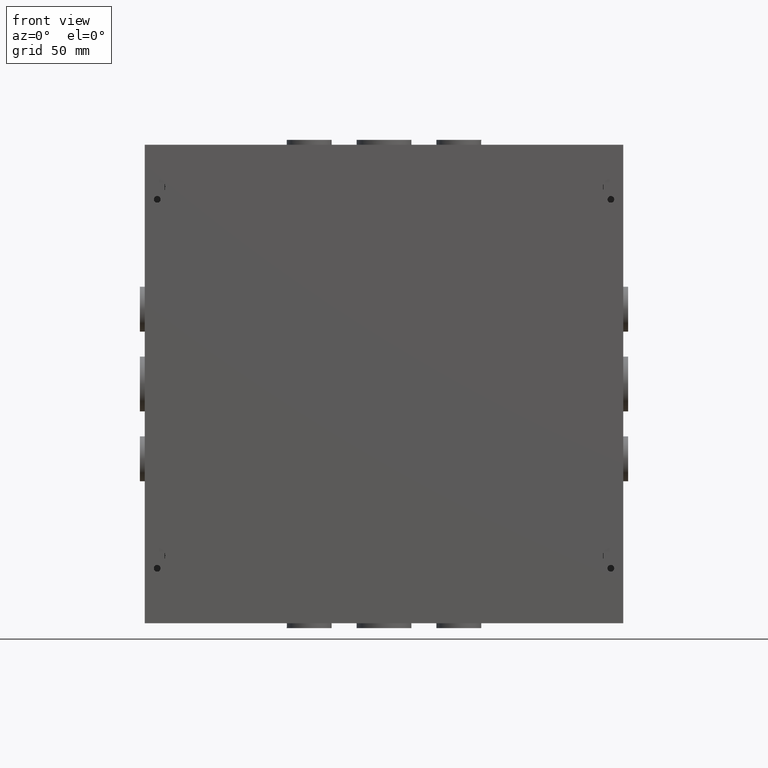
[diagram: clean part render]
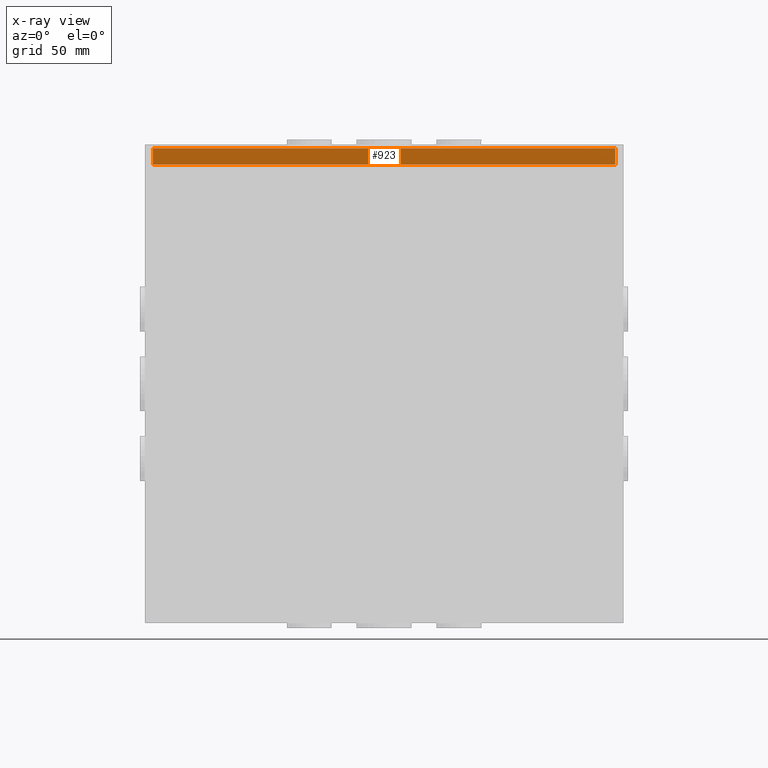
[diagram: x-ray — body ghosted, one internal face saturated and labeled with its STEP entity id]
A machine part, front view, then the same camera in x-ray: the body is ghosted and one INTERNAL B-rep face — a face not visible from any outside direction — is saturated and labeled: STEP entity #923.
In plain terms, the highlighted planar face has unit normal (-0, 1, -0).
Its self-contained STEP definition (entity closure, byte-faithful):
#923 = ADVANCED_FACE( '', ( #1976 ), #1977, .F. );
#1976 = FACE_OUTER_BOUND( '', #3091, .T. );
#1977 = PLANE( '', #3092 );
#3091 = EDGE_LOOP( '', ( #5417, #5418, #5419, #5420 ) );
#3092 = AXIS2_PLACEMENT_3D( '', #5421, #5422, #5423 );
#5417 = ORIENTED_EDGE( '', *, *, #6747, .T. );
#5418 = ORIENTED_EDGE( '', *, *, #6790, .T. );
#5419 = ORIENTED_EDGE( '', *, *, #6791, .F. );
#5420 = ORIENTED_EDGE( '', *, *, #6101, .T. );
#5421 = CARTESIAN_POINT( '', ( -1040.50147500000, 0.000000000000000, -73.9140000000000 ) );
#5422 = DIRECTION( '', ( 1.33375955164450E-017, 0.000000000000000, -1.00000000000000 ) );
#5423 = DIRECTION( '', ( -1.00000000000000, 1.54074395550979E-033, -1.33375955164450E-017 ) );
#6101 = EDGE_CURVE( '', #7210, #7208, #7211, .F. );
#6747 = EDGE_CURVE( '', #7208, #8162, #8163, .F. );
#6790 = EDGE_CURVE( '', #8162, #8211, #8212, .T. );
#6791 = EDGE_CURVE( '', #7210, #8211, #8213, .F. );
#7208 = VERTEX_POINT( '', #8758 );
#7210 = VERTEX_POINT( '', #8760 );
#7211 = LINE( '', #8761, #8762 );
#8162 = VERTEX_POINT( '', #10126 );
#8163 = LINE( '', #10127, #10128 );
#8211 = VERTEX_POINT( '', #10190 );
#8212 = LINE( '', #10191, #10192 );
#8213 = LINE( '', #10193, #10194 );
#8758 = CARTESIAN_POINT( '', ( -147.304529442132, 2.33680000000000, -73.9140000000000 ) );
#8760 = CARTESIAN_POINT( '', ( -147.304529442132, 12.7000000000000, -73.9140000000000 ) );
#8761 = CARTESIAN_POINT( '', ( -147.304529442132, 0.456795557868206, -73.9140000000000 ) );
#8762 = VECTOR( '', #10529, 1000.00000000000 );
#10126 = CARTESIAN_POINT( '', ( 147.304529442132, 2.33680000000000, -73.9140000000000 ) );
#10127 = CARTESIAN_POINT( '', ( -1040.50147500000, 2.33680000000000, -73.9140000000000 ) );
#10128 = VECTOR( '', #11228, 1000.00000000000 );
#10190 = CARTESIAN_POINT( '', ( 147.304529442132, 12.7000000000000, -73.9140000000000 ) );
#10191 = CARTESIAN_POINT( '', ( 147.304529442132, 0.456795557868206, -73.9140000000000 ) );
#10192 = VECTOR( '', #11258, 1000.00000000000 );
#10193 = CARTESIAN_POINT( '', ( -1040.50147500000, 12.7000000000000, -73.9140000000000 ) );
#10194 = VECTOR( '', #11259, 1000.00000000000 );
#10529 = DIRECTION( '', ( -1.33375955164450E-017, 1.00000000000000, -6.12323399573677E-017 ) );
#11228 = DIRECTION( '', ( -1.00000000000000, 1.54074395550979E-033, -1.33375955164450E-017 ) );
#11258 = DIRECTION( '', ( -1.33375955164450E-017, 1.00000000000000, -6.12323399573677E-017 ) );
#11259 = DIRECTION( '', ( -1.00000000000000, 1.54074395550979E-033, -1.33375955164450E-017 ) );